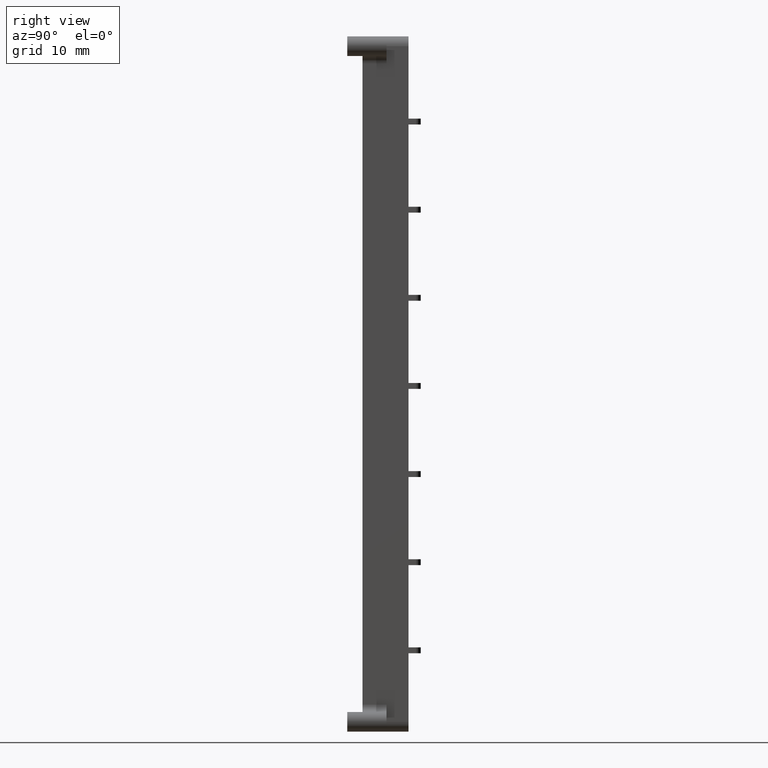
[diagram: clean part render]
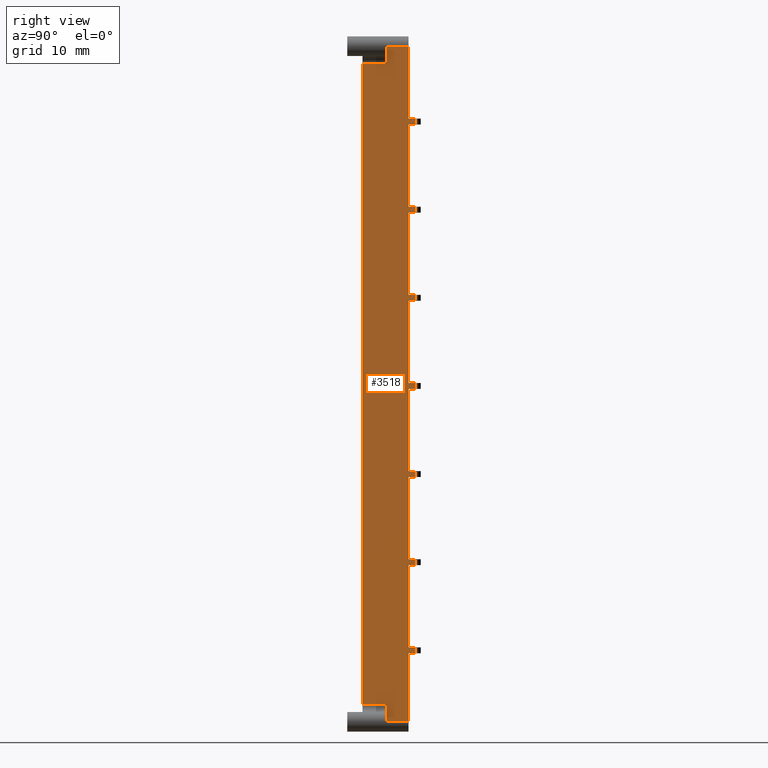
[diagram: same view with one face highlighted and labeled with its STEP entity id]
A machine part, right view. The second image highlights one B-rep face of the part: STEP entity #3518.
In plain terms, the highlighted planar face has unit normal (-1, -0, -0).
Its self-contained STEP definition (entity closure, byte-faithful):
#7 = VECTOR ( 'NONE', #8214, 1000.000000000000000 ) ;
#20 = VECTOR ( 'NONE', #8249, 1000.000000000000000 ) ;
#33 = VECTOR ( 'NONE', #8399, 1000.000000000000000 ) ;
#41 = VECTOR ( 'NONE', #8383, 1000.000000000000000 ) ;
#52 = VECTOR ( 'NONE', #8320, 1000.000000000000000 ) ;
#59 = VECTOR ( 'NONE', #8315, 1000.000000000000000 ) ;
#73 = VECTOR ( 'NONE', #8375, 1000.000000000000000 ) ;
#74 = VECTOR ( 'NONE', #8397, 1000.000000000000000 ) ;
#82 = VECTOR ( 'NONE', #8395, 1000.000000000000000 ) ;
#90 = VECTOR ( 'NONE', #8435, 1000.000000000000000 ) ;
#106 = VECTOR ( 'NONE', #8492, 1000.000000000000000 ) ;
#108 = VECTOR ( 'NONE', #8455, 1000.000000000000000 ) ;
#115 = VECTOR ( 'NONE', #8510, 1000.000000000000000 ) ;
#118 = VECTOR ( 'NONE', #8488, 1000.000000000000000 ) ;
#129 = VECTOR ( 'NONE', #8441, 1000.000000000000000 ) ;
#137 = VECTOR ( 'NONE', #8414, 1000.000000000000000 ) ;
#139 = VECTOR ( 'NONE', #8461, 1000.000000000000000 ) ;
#151 = VECTOR ( 'NONE', #8529, 1000.000000000000000 ) ;
#173 = VECTOR ( 'NONE', #8666, 1000.000000000000000 ) ;
#193 = VECTOR ( 'NONE', #8583, 1000.000000000000000 ) ;
#201 = VECTOR ( 'NONE', #8615, 1000.000000000000000 ) ;
#209 = VECTOR ( 'NONE', #8725, 1000.000000000000000 ) ;
#537 = AXIS2_PLACEMENT_3D ( 'NONE', #4621, #4626, #4599 ) ;
#623 = VECTOR ( 'NONE', #5203, 1000.000000000000000 ) ;
#656 = VECTOR ( 'NONE', #5156, 1000.000000000000000 ) ;
#660 = VECTOR ( 'NONE', #5207, 1000.000000000000000 ) ;
#670 = VECTOR ( 'NONE', #5213, 1000.000000000000000 ) ;
#696 = VECTOR ( 'NONE', #7957, 1000.000000000000000 ) ;
#707 = VECTOR ( 'NONE', #7887, 1000.000000000000000 ) ;
#726 = VECTOR ( 'NONE', #8785, 1000.000000000000000 ) ;
#729 = VECTOR ( 'NONE', #7988, 1000.000000000000000 ) ;
#739 = VECTOR ( 'NONE', #7871, 1000.000000000000000 ) ;
#740 = VECTOR ( 'NONE', #7945, 1000.000000000000000 ) ;
#781 = VECTOR ( 'NONE', #8027, 1000.000000000000000 ) ;
#819 = VECTOR ( 'NONE', #8152, 1000.000000000000000 ) ;
#821 = VECTOR ( 'NONE', #8150, 1000.000000000000000 ) ;
#833 = VECTOR ( 'NONE', #8209, 1000.000000000000000 ) ;
#845 = VERTEX_POINT ( 'NONE', #6709 ) ;
#848 = VERTEX_POINT ( 'NONE', #6703 ) ;
#857 = VERTEX_POINT ( 'NONE', #6679 ) ;
#876 = VERTEX_POINT ( 'NONE', #6681 ) ;
#881 = VERTEX_POINT ( 'NONE', #6689 ) ;
#892 = VERTEX_POINT ( 'NONE', #6782 ) ;
#901 = VERTEX_POINT ( 'NONE', #6775 ) ;
#906 = VERTEX_POINT ( 'NONE', #6785 ) ;
#912 = VERTEX_POINT ( 'NONE', #6791 ) ;
#913 = VERTEX_POINT ( 'NONE', #6776 ) ;
#922 = VERTEX_POINT ( 'NONE', #6723 ) ;
#926 = VERTEX_POINT ( 'NONE', #6772 ) ;
#937 = VERTEX_POINT ( 'NONE', #6724 ) ;
#939 = VERTEX_POINT ( 'NONE', #6726 ) ;
#940 = VERTEX_POINT ( 'NONE', #6743 ) ;
#941 = VERTEX_POINT ( 'NONE', #6736 ) ;
#946 = VERTEX_POINT ( 'NONE', #6747 ) ;
#951 = VERTEX_POINT ( 'NONE', #6760 ) ;
#957 = VERTEX_POINT ( 'NONE', #6817 ) ;
#958 = VERTEX_POINT ( 'NONE', #6827 ) ;
#961 = VERTEX_POINT ( 'NONE', #6852 ) ;
#962 = VERTEX_POINT ( 'NONE', #6806 ) ;
#969 = VERTEX_POINT ( 'NONE', #6851 ) ;
#974 = VERTEX_POINT ( 'NONE', #6815 ) ;
#976 = VERTEX_POINT ( 'NONE', #6810 ) ;
#984 = VERTEX_POINT ( 'NONE', #6853 ) ;
#987 = VERTEX_POINT ( 'NONE', #6838 ) ;
#990 = VERTEX_POINT ( 'NONE', #6834 ) ;
#991 = VERTEX_POINT ( 'NONE', #6802 ) ;
#1003 = VERTEX_POINT ( 'NONE', #6849 ) ;
#1011 = VERTEX_POINT ( 'NONE', #6845 ) ;
#1016 = VERTEX_POINT ( 'NONE', #6820 ) ;
#1023 = VERTEX_POINT ( 'NONE', #6830 ) ;
#1087 = VERTEX_POINT ( 'NONE', #6905 ) ;
#1136 = VERTEX_POINT ( 'NONE', #6907 ) ;
#1145 = VERTEX_POINT ( 'NONE', #6860 ) ;
#1159 = ORIENTED_EDGE ( 'NONE', *, *, #3858, .F. ) ;
#1171 = ORIENTED_EDGE ( 'NONE', *, *, #3946, .F. ) ;
#1192 = ORIENTED_EDGE ( 'NONE', *, *, #3787, .T. ) ;
#1197 = ORIENTED_EDGE ( 'NONE', *, *, #3898, .F. ) ;
#1212 = ORIENTED_EDGE ( 'NONE', *, *, #3792, .F. ) ;
#1214 = ORIENTED_EDGE ( 'NONE', *, *, #3707, .T. ) ;
#1218 = ORIENTED_EDGE ( 'NONE', *, *, #3717, .F. ) ;
#1219 = ORIENTED_EDGE ( 'NONE', *, *, #3885, .F. ) ;
#1221 = ORIENTED_EDGE ( 'NONE', *, *, #3890, .F. ) ;
#1237 = ORIENTED_EDGE ( 'NONE', *, *, #3860, .F. ) ;
#1262 = ORIENTED_EDGE ( 'NONE', *, *, #3708, .F. ) ;
#1264 = ORIENTED_EDGE ( 'NONE', *, *, #3905, .F. ) ;
#1274 = ORIENTED_EDGE ( 'NONE', *, *, #3683, .F. ) ;
#1278 = ORIENTED_EDGE ( 'NONE', *, *, #3667, .F. ) ;
#1280 = ORIENTED_EDGE ( 'NONE', *, *, #3889, .F. ) ;
#1282 = ORIENTED_EDGE ( 'NONE', *, *, #3851, .F. ) ;
#1291 = ORIENTED_EDGE ( 'NONE', *, *, #3682, .F. ) ;
#1293 = ORIENTED_EDGE ( 'NONE', *, *, #3936, .F. ) ;
#1294 = ORIENTED_EDGE ( 'NONE', *, *, #3819, .F. ) ;
#1296 = ORIENTED_EDGE ( 'NONE', *, *, #3692, .F. ) ;
#1299 = ORIENTED_EDGE ( 'NONE', *, *, #3671, .F. ) ;
#1301 = ORIENTED_EDGE ( 'NONE', *, *, #3706, .F. ) ;
#1304 = ORIENTED_EDGE ( 'NONE', *, *, #3859, .F. ) ;
#1314 = ORIENTED_EDGE ( 'NONE', *, *, #3879, .F. ) ;
#1321 = ORIENTED_EDGE ( 'NONE', *, *, #3952, .F. ) ;
#1323 = ORIENTED_EDGE ( 'NONE', *, *, #3801, .F. ) ;
#1328 = ORIENTED_EDGE ( 'NONE', *, *, #3723, .T. ) ;
#1342 = ORIENTED_EDGE ( 'NONE', *, *, #3865, .F. ) ;
#1343 = ORIENTED_EDGE ( 'NONE', *, *, #3803, .F. ) ;
#1345 = ORIENTED_EDGE ( 'NONE', *, *, #3861, .F. ) ;
#1352 = ORIENTED_EDGE ( 'NONE', *, *, #3877, .F. ) ;
#1354 = ORIENTED_EDGE ( 'NONE', *, *, #3841, .F. ) ;
#1357 = ORIENTED_EDGE ( 'NONE', *, *, #3751, .F. ) ;
#1360 = ORIENTED_EDGE ( 'NONE', *, *, #3970, .F. ) ;
#1363 = ORIENTED_EDGE ( 'NONE', *, *, #3919, .F. ) ;
#1366 = ORIENTED_EDGE ( 'NONE', *, *, #3903, .F. ) ;
#3518 = ADVANCED_FACE ( 'NONE', ( #4620 ), #4617, .F. ) ;
#3667 = EDGE_CURVE ( 'NONE', #940, #1011, #5180, .T. ) ;
#3671 = EDGE_CURVE ( 'NONE', #912, #913, #5200, .T. ) ;
#3682 = EDGE_CURVE ( 'NONE', #1016, #941, #5196, .T. ) ;
#3683 = EDGE_CURVE ( 'NONE', #937, #991, #5197, .T. ) ;
#3692 = EDGE_CURVE ( 'NONE', #961, #881, #8783, .T. ) ;
#3706 = EDGE_CURVE ( 'NONE', #962, #957, #7867, .T. ) ;
#3707 = EDGE_CURVE ( 'NONE', #906, #876, #7891, .T. ) ;
#3708 = EDGE_CURVE ( 'NONE', #958, #901, #7894, .T. ) ;
#3717 = EDGE_CURVE ( 'NONE', #951, #946, #7917, .T. ) ;
#3723 = EDGE_CURVE ( 'NONE', #892, #857, #7940, .T. ) ;
#3751 = EDGE_CURVE ( 'NONE', #984, #845, #8021, .T. ) ;
#3787 = EDGE_CURVE ( 'NONE', #922, #848, #8143, .T. ) ;
#3792 = EDGE_CURVE ( 'NONE', #990, #939, #8140, .T. ) ;
#3801 = EDGE_CURVE ( 'NONE', #976, #961, #8179, .T. ) ;
#3803 = EDGE_CURVE ( 'NONE', #881, #962, #8187, .T. ) ;
#3819 = EDGE_CURVE ( 'NONE', #1087, #926, #8253, .T. ) ;
#3841 = EDGE_CURVE ( 'NONE', #926, #976, #8270, .T. ) ;
#3851 = EDGE_CURVE ( 'NONE', #957, #958, #8318, .T. ) ;
#3858 = EDGE_CURVE ( 'NONE', #1145, #1087, #8333, .T. ) ;
#3859 = EDGE_CURVE ( 'NONE', #922, #937, #8374, .T. ) ;
#3860 = EDGE_CURVE ( 'NONE', #913, #857, #8381, .T. ) ;
#3861 = EDGE_CURVE ( 'NONE', #939, #1003, #8392, .T. ) ;
#3865 = EDGE_CURVE ( 'NONE', #845, #848, #8391, .T. ) ;
#3877 = EDGE_CURVE ( 'NONE', #987, #1136, #8407, .T. ) ;
#3879 = EDGE_CURVE ( 'NONE', #1011, #951, #8404, .T. ) ;
#3885 = EDGE_CURVE ( 'NONE', #991, #940, #8443, .T. ) ;
#3889 = EDGE_CURVE ( 'NONE', #906, #1016, #8454, .T. ) ;
#3890 = EDGE_CURVE ( 'NONE', #901, #912, #8456, .T. ) ;
#3898 = EDGE_CURVE ( 'NONE', #1003, #969, #8509, .T. ) ;
#3903 = EDGE_CURVE ( 'NONE', #969, #987, #8501, .T. ) ;
#3905 = EDGE_CURVE ( 'NONE', #946, #876, #8503, .T. ) ;
#3919 = EDGE_CURVE ( 'NONE', #974, #1023, #8528, .T. ) ;
#3936 = EDGE_CURVE ( 'NONE', #892, #984, #8558, .T. ) ;
#3946 = EDGE_CURVE ( 'NONE', #1136, #974, #8614, .T. ) ;
#3952 = EDGE_CURVE ( 'NONE', #1023, #1145, #8618, .T. ) ;
#3970 = EDGE_CURVE ( 'NONE', #941, #990, #8711, .T. ) ;
#4599 = DIRECTION ( 'NONE',  ( -3.492165866658390800E-015, 0.0000000000000000000, 1.000000000000000000 ) ) ;
#4617 = PLANE ( 'NONE',  #537 ) ;
#4620 = FACE_OUTER_BOUND ( 'NONE', #6646, .T. ) ;
#4621 = CARTESIAN_POINT ( 'NONE',  ( 464.1252094327940100, 140.9878730676890100, -1.045883411433843800 ) ) ;
#4626 = DIRECTION ( 'NONE',  ( -1.000000000000000000, -2.625714205539857000E-033, -3.492165866658390800E-015 ) ) ;
#5137 = CARTESIAN_POINT ( 'NONE',  ( 464.1252094327939500, 149.0878730676890000, 26.60000000000000100 ) ) ;
#5156 = DIRECTION ( 'NONE',  ( -9.546107180843072800E-035, -1.000000000000000000, 2.733577826868160200E-020 ) ) ;
#5180 = LINE ( 'NONE', #5137, #656 ) ;
#5186 = CARTESIAN_POINT ( 'NONE',  ( 464.1252094327940100, 149.0878730676890000, 9.200000000000111200 ) ) ;
#5196 = LINE ( 'NONE', #5186, #660 ) ;
#5197 = LINE ( 'NONE', #5214, #623 ) ;
#5200 = LINE ( 'NONE', #5223, #670 ) ;
#5203 = DIRECTION ( 'NONE',  ( -0.0000000000000000000, 1.000000000000000000, -2.733577826868160200E-020 ) ) ;
#5207 = DIRECTION ( 'NONE',  ( 9.546107180843072800E-035, 1.000000000000000000, -2.733577826868160200E-020 ) ) ;
#5213 = DIRECTION ( 'NONE',  ( -0.0000000000000000000, 1.000000000000000000, -2.733577826868160200E-020 ) ) ;
#5214 = CARTESIAN_POINT ( 'NONE',  ( 464.1252094327940100, 142.0778730676889800, 27.20000000000000300 ) ) ;
#5223 = CARTESIAN_POINT ( 'NONE',  ( 464.1252094327940100, 144.0778730676889800, 45.19999999999999600 ) ) ;
#6646 = EDGE_LOOP ( 'NONE', ( #1171, #1352, #1366, #1197, #1345, #1212, #1360, #1291, #1280, #1214, #1264, #1218, #1314, #1278, #1219, #1274, #1304, #1192, #1342, #1357, #1293, #1328, #1237, #1299, #1221, #1262, #1282, #1301, #1343, #1296, #1323, #1354, #1294, #1159, #1321, #1363 ) ) ;
#6679 = CARTESIAN_POINT ( 'NONE',  ( 464.1252094327938900, 149.0878730676890000, 44.60000000000000100 ) ) ;
#6681 = CARTESIAN_POINT ( 'NONE',  ( 464.1252094327940100, 149.0878730676890000, 17.60000000000000100 ) ) ;
#6689 = CARTESIAN_POINT ( 'NONE',  ( 464.1252094327938900, 148.3378730676890000, 62.60000000000000100 ) ) ;
#6703 = CARTESIAN_POINT ( 'NONE',  ( 464.1252094327938900, 149.0878730676890000, 35.60000000000000100 ) ) ;
#6709 = CARTESIAN_POINT ( 'NONE',  ( 464.1252094327939500, 149.0878730676890000, 36.19999999999999600 ) ) ;
#6723 = CARTESIAN_POINT ( 'NONE',  ( 464.1252094327938900, 148.3378730676890000, 35.60000000000000100 ) ) ;
#6724 = CARTESIAN_POINT ( 'NONE',  ( 464.1252094327940100, 148.3378730676890000, 27.20000000000000300 ) ) ;
#6726 = CARTESIAN_POINT ( 'NONE',  ( 464.1252094327939500, 148.3378730676890000, 8.599999999999999600 ) ) ;
#6736 = CARTESIAN_POINT ( 'NONE',  ( 464.1252094327940100, 149.0878730676890000, 9.200000000000111200 ) ) ;
#6743 = CARTESIAN_POINT ( 'NONE',  ( 464.1252094327938900, 149.0878730676890000, 26.59999999999999800 ) ) ;
#6747 = CARTESIAN_POINT ( 'NONE',  ( 464.1252094327940100, 149.0878730676890000, 18.19999999999999900 ) ) ;
#6760 = CARTESIAN_POINT ( 'NONE',  ( 464.1252094327940100, 148.3378730676890000, 18.19999999999999900 ) ) ;
#6772 = CARTESIAN_POINT ( 'NONE',  ( 464.1252094327938400, 148.3378730676890000, 63.20000000000004500 ) ) ;
#6775 = CARTESIAN_POINT ( 'NONE',  ( 464.1252094327938900, 148.3378730676890000, 53.59999999999999400 ) ) ;
#6776 = CARTESIAN_POINT ( 'NONE',  ( 464.1252094327938900, 149.0878730676890000, 45.19999999999999600 ) ) ;
#6782 = CARTESIAN_POINT ( 'NONE',  ( 464.1252094327938900, 148.3378730676890000, 44.60000000000000100 ) ) ;
#6785 = CARTESIAN_POINT ( 'NONE',  ( 464.1252094327940100, 148.3378730676890000, 17.60000000000000100 ) ) ;
#6791 = CARTESIAN_POINT ( 'NONE',  ( 464.1252094327940100, 148.3378730676890000, 45.19999999999999600 ) ) ;
#6802 = CARTESIAN_POINT ( 'NONE',  ( 464.1252094327939500, 149.0878730676890000, 27.20000000000000600 ) ) ;
#6806 = CARTESIAN_POINT ( 'NONE',  ( 464.1252094327940100, 148.3378730676890000, 54.19999999999999600 ) ) ;
#6810 = CARTESIAN_POINT ( 'NONE',  ( 464.1252094327938400, 149.0878730676890000, 63.20000000000000300 ) ) ;
#6815 = CARTESIAN_POINT ( 'NONE',  ( 464.1252094327938900, 143.6378730676889900, 68.84999999999844500 ) ) ;
#6817 = CARTESIAN_POINT ( 'NONE',  ( 464.1252094327938900, 149.0878730676890000, 54.19999999999999600 ) ) ;
#6820 = CARTESIAN_POINT ( 'NONE',  ( 464.1252094327940100, 148.3378730676890000, 9.200000000000111200 ) ) ;
#6827 = CARTESIAN_POINT ( 'NONE',  ( 464.1252094327938900, 149.0878730676890000, 53.59999999999999400 ) ) ;
#6830 = CARTESIAN_POINT ( 'NONE',  ( 464.1252094327937800, 146.0878730676890000, 68.84999999999844500 ) ) ;
#6834 = CARTESIAN_POINT ( 'NONE',  ( 464.1252094327940100, 149.0878730676890000, 8.599999999999999600 ) ) ;
#6838 = CARTESIAN_POINT ( 'NONE',  ( 464.1252094327940100, 146.0878730676890000, 3.350000000000088000 ) ) ;
#6845 = CARTESIAN_POINT ( 'NONE',  ( 464.1252094327938900, 148.3378730676890000, 26.59999999999999800 ) ) ;
#6849 = CARTESIAN_POINT ( 'NONE',  ( 464.1252094327940100, 148.3378730676890000, 1.600000000000117800 ) ) ;
#6851 = CARTESIAN_POINT ( 'NONE',  ( 464.1252094327940100, 146.0878730676890000, 1.600000000000117800 ) ) ;
#6852 = CARTESIAN_POINT ( 'NONE',  ( 464.1252094327938400, 149.0878730676890000, 62.60000000000000100 ) ) ;
#6853 = CARTESIAN_POINT ( 'NONE',  ( 464.1252094327940100, 148.3378730676890000, 36.19999999999999600 ) ) ;
#6860 = CARTESIAN_POINT ( 'NONE',  ( 464.1252094327937200, 146.0878730676890000, 70.59999999999961100 ) ) ;
#6905 = CARTESIAN_POINT ( 'NONE',  ( 464.1252094327937200, 148.3378730676890000, 70.59999999999961100 ) ) ;
#6907 = CARTESIAN_POINT ( 'NONE',  ( 464.1252094327940100, 143.6378730676889900, 3.350000000000089800 ) ) ;
#7867 = LINE ( 'NONE', #7878, #707 ) ;
#7869 = CARTESIAN_POINT ( 'NONE',  ( 464.1252094327940100, 143.6278730676890500, 17.60000000000000100 ) ) ;
#7871 = DIRECTION ( 'NONE',  ( -0.0000000000000000000, 1.000000000000000000, -2.733577826868160200E-020 ) ) ;
#7878 = CARTESIAN_POINT ( 'NONE',  ( 464.1252094327940100, 142.0778730676889800, 54.19999999999999600 ) ) ;
#7887 = DIRECTION ( 'NONE',  ( -0.0000000000000000000, 1.000000000000000000, -2.733577826868160200E-020 ) ) ;
#7891 = LINE ( 'NONE', #7869, #739 ) ;
#7894 = LINE ( 'NONE', #7954, #740 ) ;
#7917 = LINE ( 'NONE', #7951, #696 ) ;
#7940 = LINE ( 'NONE', #7969, #729 ) ;
#7945 = DIRECTION ( 'NONE',  ( -9.546107180843072800E-035, -1.000000000000000000, 2.733577826868160200E-020 ) ) ;
#7951 = CARTESIAN_POINT ( 'NONE',  ( 464.1252094327940100, 144.0778730676889800, 18.19999999999999900 ) ) ;
#7954 = CARTESIAN_POINT ( 'NONE',  ( 464.1252094327938900, 149.0878730676890000, 53.59999999999999400 ) ) ;
#7957 = DIRECTION ( 'NONE',  ( -0.0000000000000000000, 1.000000000000000000, -2.733577826868160200E-020 ) ) ;
#7969 = CARTESIAN_POINT ( 'NONE',  ( 464.1252094327938900, 143.6278730676890500, 44.60000000000000100 ) ) ;
#7988 = DIRECTION ( 'NONE',  ( -0.0000000000000000000, 1.000000000000000000, -2.733577826868160200E-020 ) ) ;
#8021 = LINE ( 'NONE', #8026, #781 ) ;
#8026 = CARTESIAN_POINT ( 'NONE',  ( 464.1252094327940100, 142.0778730676889800, 36.19999999999999600 ) ) ;
#8027 = DIRECTION ( 'NONE',  ( -0.0000000000000000000, 1.000000000000000000, -2.733577826868160200E-020 ) ) ;
#8138 = CARTESIAN_POINT ( 'NONE',  ( 464.1252094327940100, 149.0878730676890000, 8.600000000000001400 ) ) ;
#8140 = LINE ( 'NONE', #8138, #819 ) ;
#8143 = LINE ( 'NONE', #8144, #821 ) ;
#8144 = CARTESIAN_POINT ( 'NONE',  ( 464.1252094327939500, 143.6278730676890500, 35.60000000000000100 ) ) ;
#8150 = DIRECTION ( 'NONE',  ( -0.0000000000000000000, 1.000000000000000000, -2.733577826868160200E-020 ) ) ;
#8152 = DIRECTION ( 'NONE',  ( -9.546107180843072800E-035, -1.000000000000000000, 2.733577826868160200E-020 ) ) ;
#8179 = LINE ( 'NONE', #8208, #833 ) ;
#8187 = LINE ( 'NONE', #8212, #7 ) ;
#8208 = CARTESIAN_POINT ( 'NONE',  ( 464.1252094327940100, 149.0878730676890000, -1.045883411433843800 ) ) ;
#8209 = DIRECTION ( 'NONE',  ( 3.492165866658390800E-015, -0.0000000000000000000, -1.000000000000000000 ) ) ;
#8212 = CARTESIAN_POINT ( 'NONE',  ( 464.1252094327940100, 148.3378730676890000, -1.045883411433843800 ) ) ;
#8214 = DIRECTION ( 'NONE',  ( 3.492165866658390800E-015, -0.0000000000000000000, -1.000000000000000000 ) ) ;
#8245 = CARTESIAN_POINT ( 'NONE',  ( 464.1252094327940100, 148.3378730676890000, -1.045883411433843800 ) ) ;
#8249 = DIRECTION ( 'NONE',  ( 3.492165866658390800E-015, -0.0000000000000000000, -1.000000000000000000 ) ) ;
#8253 = LINE ( 'NONE', #8245, #20 ) ;
#8270 = LINE ( 'NONE', #8271, #59 ) ;
#8271 = CARTESIAN_POINT ( 'NONE',  ( 464.1252094327938900, 142.0778730676889800, 63.20000000000000300 ) ) ;
#8315 = DIRECTION ( 'NONE',  ( -0.0000000000000000000, 1.000000000000000000, -2.733577826868160200E-020 ) ) ;
#8318 = LINE ( 'NONE', #8326, #52 ) ;
#8320 = DIRECTION ( 'NONE',  ( 3.492165866658390800E-015, -0.0000000000000000000, -1.000000000000000000 ) ) ;
#8326 = CARTESIAN_POINT ( 'NONE',  ( 464.1252094327940100, 149.0878730676890000, -1.045883411433843800 ) ) ;
#8333 = LINE ( 'NONE', #8342, #73 ) ;
#8342 = CARTESIAN_POINT ( 'NONE',  ( 464.1252094327937200, 140.9878730676890100, 70.59999999999919900 ) ) ;
#8362 = CARTESIAN_POINT ( 'NONE',  ( 464.1252094327940100, 148.3378730676890000, -1.045883411433843800 ) ) ;
#8365 = CARTESIAN_POINT ( 'NONE',  ( 464.1252094327940100, 149.0878730676890000, -1.045883411433843800 ) ) ;
#8371 = CARTESIAN_POINT ( 'NONE',  ( 464.1252094327940100, 148.3378730676890000, -1.045883411433843800 ) ) ;
#8374 = LINE ( 'NONE', #8362, #74 ) ;
#8375 = DIRECTION ( 'NONE',  ( -2.625714205539857000E-033, 1.000000000000000000, -9.169429524186343400E-048 ) ) ;
#8381 = LINE ( 'NONE', #8384, #41 ) ;
#8383 = DIRECTION ( 'NONE',  ( 3.492165866658390800E-015, -0.0000000000000000000, -1.000000000000000000 ) ) ;
#8384 = CARTESIAN_POINT ( 'NONE',  ( 464.1252094327940100, 149.0878730676890000, -1.045883411433843800 ) ) ;
#8391 = LINE ( 'NONE', #8365, #33 ) ;
#8392 = LINE ( 'NONE', #8371, #82 ) ;
#8395 = DIRECTION ( 'NONE',  ( 3.492165866658390800E-015, -0.0000000000000000000, -1.000000000000000000 ) ) ;
#8397 = DIRECTION ( 'NONE',  ( 3.492165866658390800E-015, -0.0000000000000000000, -1.000000000000000000 ) ) ;
#8399 = DIRECTION ( 'NONE',  ( 3.492165866658390800E-015, -0.0000000000000000000, -1.000000000000000000 ) ) ;
#8404 = LINE ( 'NONE', #8415, #129 ) ;
#8407 = LINE ( 'NONE', #8413, #137 ) ;
#8413 = CARTESIAN_POINT ( 'NONE',  ( 464.1252094327940100, 140.9878730676890100, 3.350000000000088900 ) ) ;
#8414 = DIRECTION ( 'NONE',  ( 2.625714205539857000E-033, -1.000000000000000000, 9.169429524186343400E-048 ) ) ;
#8415 = CARTESIAN_POINT ( 'NONE',  ( 464.1252094327940100, 148.3378730676890000, -1.045883411433843800 ) ) ;
#8428 = CARTESIAN_POINT ( 'NONE',  ( 464.1252094327940100, 148.3378730676890000, -1.045883411433843800 ) ) ;
#8431 = CARTESIAN_POINT ( 'NONE',  ( 464.1252094327940100, 148.3378730676890000, -1.045883411433843800 ) ) ;
#8435 = DIRECTION ( 'NONE',  ( 3.492165866658390800E-015, -0.0000000000000000000, -1.000000000000000000 ) ) ;
#8441 = DIRECTION ( 'NONE',  ( 3.492165866658390800E-015, -0.0000000000000000000, -1.000000000000000000 ) ) ;
#8443 = LINE ( 'NONE', #8449, #108 ) ;
#8449 = CARTESIAN_POINT ( 'NONE',  ( 464.1252094327940100, 149.0878730676890000, -1.045883411433843800 ) ) ;
#8454 = LINE ( 'NONE', #8428, #139 ) ;
#8455 = DIRECTION ( 'NONE',  ( 3.492165866658390800E-015, -0.0000000000000000000, -1.000000000000000000 ) ) ;
#8456 = LINE ( 'NONE', #8431, #90 ) ;
#8461 = DIRECTION ( 'NONE',  ( 3.492165866658390800E-015, -0.0000000000000000000, -1.000000000000000000 ) ) ;
#8478 = CARTESIAN_POINT ( 'NONE',  ( 464.1252094327940100, 140.9878730676890100, 1.600000000000116700 ) ) ;
#8483 = CARTESIAN_POINT ( 'NONE',  ( 464.1252094327940100, 149.0878730676890000, -1.045883411433843800 ) ) ;
#8486 = CARTESIAN_POINT ( 'NONE',  ( 464.1252094327940100, 146.0878730676890000, -1.045883411433843800 ) ) ;
#8488 = DIRECTION ( 'NONE',  ( 3.492165866658390800E-015, -0.0000000000000000000, -1.000000000000000000 ) ) ;
#8492 = DIRECTION ( 'NONE',  ( -3.492165866658390800E-015, 0.0000000000000000000, 1.000000000000000000 ) ) ;
#8501 = LINE ( 'NONE', #8486, #106 ) ;
#8503 = LINE ( 'NONE', #8483, #118 ) ;
#8509 = LINE ( 'NONE', #8478, #115 ) ;
#8510 = DIRECTION ( 'NONE',  ( 2.625714205539857000E-033, -1.000000000000000000, 9.169429524186343400E-048 ) ) ;
#8528 = LINE ( 'NONE', #8537, #151 ) ;
#8529 = DIRECTION ( 'NONE',  ( -2.625714205539857000E-033, 1.000000000000000000, -9.169429524186343400E-048 ) ) ;
#8537 = CARTESIAN_POINT ( 'NONE',  ( 464.1252094327937800, 140.9878730676890100, 68.84999999999844500 ) ) ;
#8558 = LINE ( 'NONE', #8576, #193 ) ;
#8576 = CARTESIAN_POINT ( 'NONE',  ( 464.1252094327940100, 148.3378730676890000, -1.045883411433843800 ) ) ;
#8583 = DIRECTION ( 'NONE',  ( 3.492165866658390800E-015, -0.0000000000000000000, -1.000000000000000000 ) ) ;
#8614 = LINE ( 'NONE', #8632, #201 ) ;
#8615 = DIRECTION ( 'NONE',  ( -0.0000000000000000000, -2.733577826868160200E-020, 1.000000000000000000 ) ) ;
#8618 = LINE ( 'NONE', #8690, #173 ) ;
#8632 = CARTESIAN_POINT ( 'NONE',  ( 464.1252094327940100, 143.6378730676889900, 68.84999999999844500 ) ) ;
#8666 = DIRECTION ( 'NONE',  ( -3.492165866658390800E-015, 0.0000000000000000000, 1.000000000000000000 ) ) ;
#8690 = CARTESIAN_POINT ( 'NONE',  ( 464.1252094327940100, 146.0878730676890000, -1.045883411433843800 ) ) ;
#8711 = LINE ( 'NONE', #8719, #209 ) ;
#8719 = CARTESIAN_POINT ( 'NONE',  ( 464.1252094327940100, 149.0878730676890000, -1.045883411433843800 ) ) ;
#8725 = DIRECTION ( 'NONE',  ( 3.492165866658390800E-015, -0.0000000000000000000, -1.000000000000000000 ) ) ;
#8783 = LINE ( 'NONE', #8787, #726 ) ;
#8785 = DIRECTION ( 'NONE',  ( -9.546107180843072800E-035, -1.000000000000000000, 2.733577826868160200E-020 ) ) ;
#8787 = CARTESIAN_POINT ( 'NONE',  ( 464.1252094327938900, 149.0878730676890000, 62.60000000000000100 ) ) ;